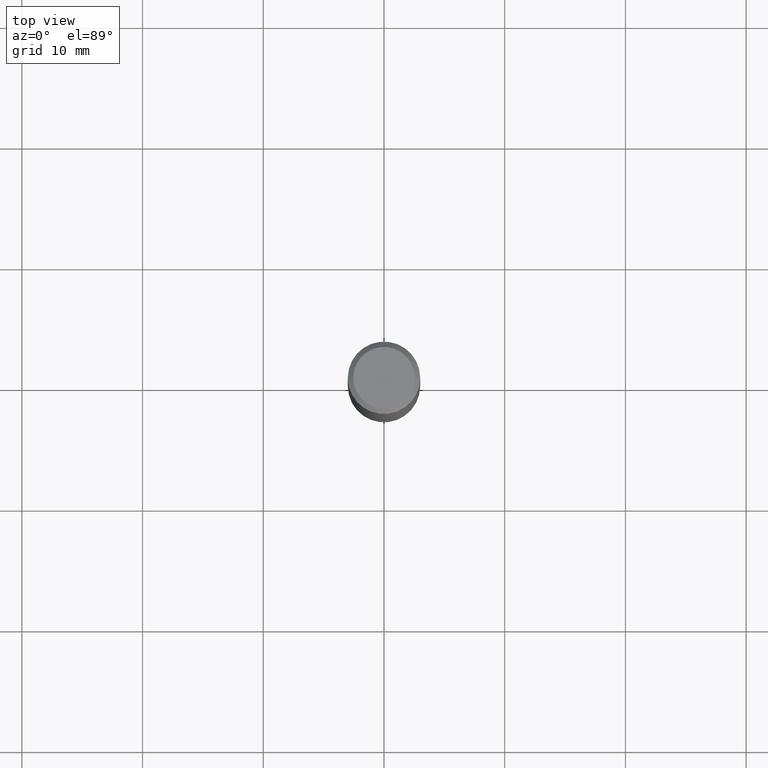
[diagram: clean part render]
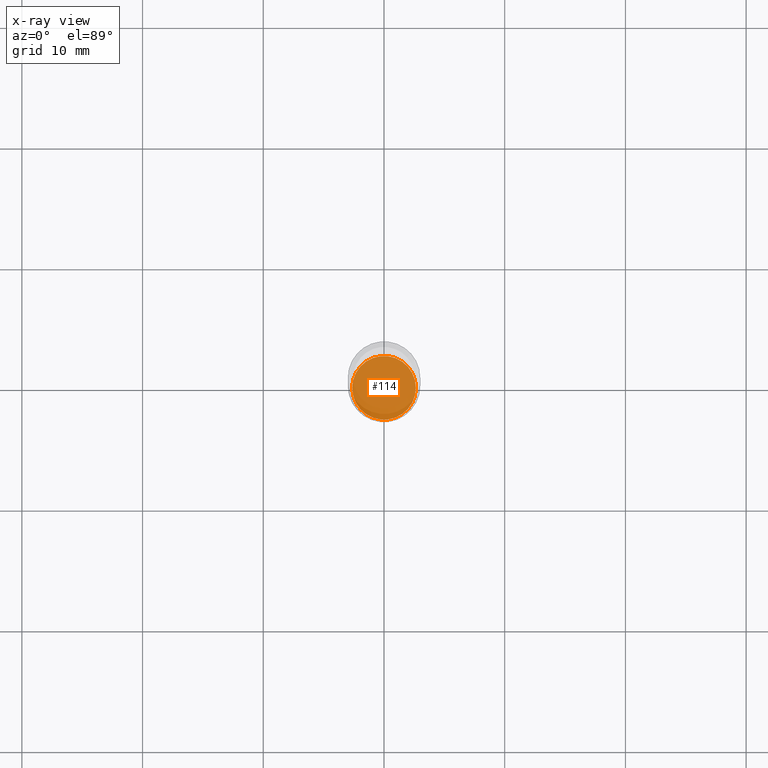
[diagram: x-ray — body ghosted, one internal face saturated and labeled with its STEP entity id]
A machine part, top view, then the same camera in x-ray: the body is ghosted and one INTERNAL B-rep face — a face not visible from any outside direction — is saturated and labeled: STEP entity #114.
In plain terms, the highlighted planar face has unit normal (-0, 0, 1).
Its self-contained STEP definition (entity closure, byte-faithful):
#7 = DIRECTION ( 'NONE',  ( -2.438088387897960049E-29, 3.491481338843145188E-15, 1.000000000000000000 ) ) ;
#16 = CARTESIAN_POINT ( 'NONE',  ( -0.1038499999999999840, -5.949828683230260894E-15, -1.916200000000000125 ) ) ;
#22 = CARTESIAN_POINT ( 'NONE',  ( 4.686007326411958791E-29, -6.690376541491236123E-15, -1.916200000000000125 ) ) ;
#42 = FACE_OUTER_BOUND ( 'NONE', #302, .T. ) ;
#49 = DIRECTION ( 'NONE',  ( -2.445468806185136597E-29, 3.491481338843145583E-15, 1.000000000000000000 ) ) ;
#85 = DIRECTION ( 'NONE',  ( 1.000000000000000000, -6.982962677686268288E-15, 0.000000000000000000 ) ) ;
#100 = ORIENTED_EDGE ( 'NONE', *, *, #374, .F. ) ;
#114 = ADVANCED_FACE ( 'NONE', ( #42 ), #179, .F. ) ;
#128 = CARTESIAN_POINT ( 'NONE',  ( 4.686007326411958791E-29, -6.690376541491236123E-15, -1.916200000000000125 ) ) ;
#138 = AXIS2_PLACEMENT_3D ( 'NONE', #439, #7, #178 ) ;
#157 = CARTESIAN_POINT ( 'NONE',  ( 0.1038499999999999840, -7.415557215568955527E-15, -1.916200000000000125 ) ) ;
#178 = DIRECTION ( 'NONE',  ( 1.000000000000000000, -6.982962677686265922E-15, 4.876176775795935793E-29 ) ) ;
#179 = PLANE ( 'NONE',  #138 ) ;
#201 = VERTEX_POINT ( 'NONE', #157 ) ;
#252 = AXIS2_PLACEMENT_3D ( 'NONE', #128, #268, #85 ) ;
#268 = DIRECTION ( 'NONE',  ( -2.445468806185136597E-29, 3.491481338843145583E-15, 1.000000000000000000 ) ) ;
#269 = ORIENTED_EDGE ( 'NONE', *, *, #386, .F. ) ;
#278 = CIRCLE ( 'NONE', #252, 0.1038499999999999840 ) ;
#286 = CIRCLE ( 'NONE', #325, 0.1038499999999999840 ) ;
#302 = EDGE_LOOP ( 'NONE', ( #269, #100 ) ) ;
#325 = AXIS2_PLACEMENT_3D ( 'NONE', #22, #49, #405 ) ;
#344 = VERTEX_POINT ( 'NONE', #16 ) ;
#374 = EDGE_CURVE ( 'NONE', #344, #201, #286, .T. ) ;
#386 = EDGE_CURVE ( 'NONE', #201, #344, #278, .T. ) ;
#405 = DIRECTION ( 'NONE',  ( 1.000000000000000000, -6.982962677686268288E-15, 0.000000000000000000 ) ) ;
#439 = CARTESIAN_POINT ( 'NONE',  ( 4.686007326411958791E-29, -6.690376541491236123E-15, -1.916200000000000125 ) ) ;